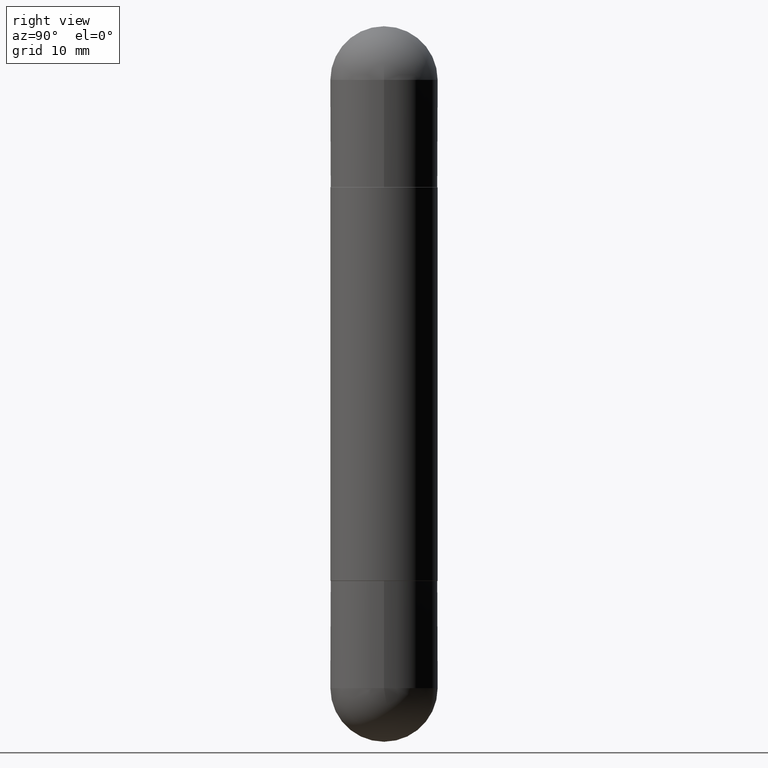
[diagram: clean part render]
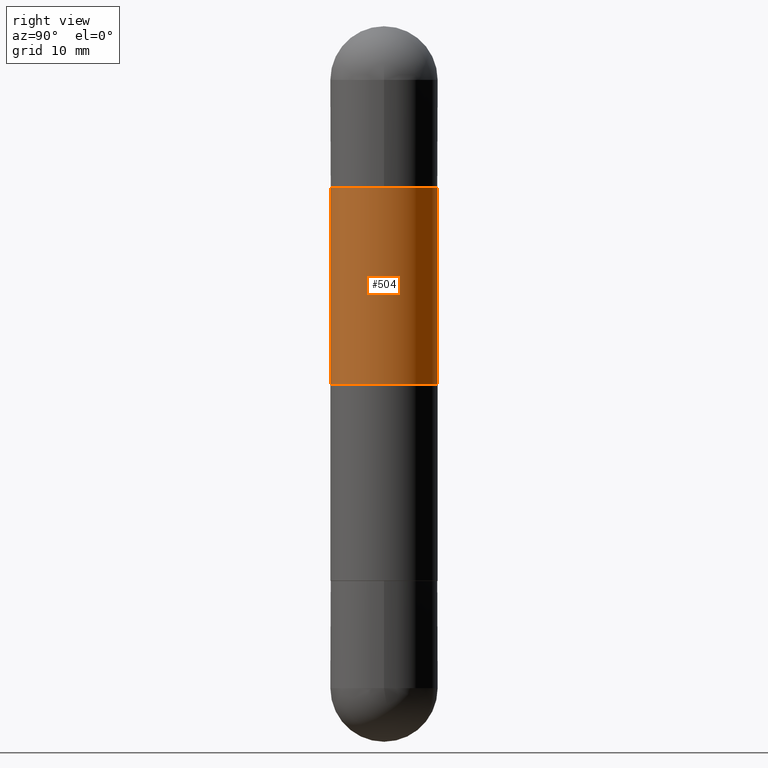
[diagram: same view with one face highlighted and labeled with its STEP entity id]
A machine part, right view. The second image highlights one B-rep face of the part: STEP entity #504.
In plain terms, the highlighted cylindrical surface (partial cylindrical patch) has radius 4.7625 mm, axis along (-0, 0, -1).
Its self-contained STEP definition (entity closure, byte-faithful):
#8 = DIRECTION ( 'NONE',  ( -2.444965825479166385E-29, 3.492201635841979178E-15, -1.000000000000000000 ) ) ;
#9 = LINE ( 'NONE', #766, #771 ) ;
#10 = DIRECTION ( 'NONE',  ( -2.444965825479166385E-29, 3.492201635841978784E-15, -1.000000000000000000 ) ) ;
#17 = DIRECTION ( 'NONE',  ( -0.000000000000000000, -0.000000000000000000, -1.000000000000000000 ) ) ;
#20 = CIRCLE ( 'NONE', #621, 0.1875000000000001110 ) ;
#48 = ORIENTED_EDGE ( 'NONE', *, *, #378, .F. ) ;
#61 = AXIS2_PLACEMENT_3D ( 'NONE', #320, #10, #74 ) ;
#74 = DIRECTION ( 'NONE',  ( -6.982962677686266711E-15, -1.000000000000000000, -2.913971193241879189E-15 ) ) ;
#103 = EDGE_CURVE ( 'NONE', #716, #119, #9, .T. ) ;
#119 = VERTEX_POINT ( 'NONE', #264 ) ;
#234 = CARTESIAN_POINT ( 'NONE',  ( 4.735898803953145257E-29, -6.764394568625911806E-15, -0.5630000000000008331 ) ) ;
#259 = CARTESIAN_POINT ( 'NONE',  ( 1.286343374582210880E-15, 0.1874999999999935052, -0.5630000000000001670 ) ) ;
#260 = EDGE_LOOP ( 'NONE', ( #616, #48, #507, #458 ) ) ;
#264 = CARTESIAN_POINT ( 'NONE',  ( -1.309305502066136946E-15, -0.1875000000000044964, -1.250000000000000222 ) ) ;
#320 = CARTESIAN_POINT ( 'NONE',  ( 0.000000000000000000, 0.000000000000000000, -2.500000000000000444 ) ) ;
#378 = EDGE_CURVE ( 'NONE', #716, #524, #565, .T. ) ;
#385 = CYLINDRICAL_SURFACE ( 'NONE', #61, 0.1875000000000001110 ) ;
#411 = CARTESIAN_POINT ( 'NONE',  ( -1.309305502066128860E-15, -0.1875000000000069389, -0.5630000000000014992 ) ) ;
#422 = DIRECTION ( 'NONE',  ( 2.444965825479166385E-29, -3.492201635841978784E-15, 1.000000000000000000 ) ) ;
#458 = ORIENTED_EDGE ( 'NONE', *, *, #477, .F. ) ;
#466 = DIRECTION ( 'NONE',  ( -1.000000000000000000, 0.000000000000000000, 0.000000000000000000 ) ) ;
#469 = EDGE_CURVE ( 'NONE', #524, #686, #763, .T. ) ;
#477 = EDGE_CURVE ( 'NONE', #686, #119, #20, .T. ) ;
#504 = ADVANCED_FACE ( 'NONE', ( #652 ), #385, .T. ) ;
#507 = ORIENTED_EDGE ( 'NONE', *, *, #103, .T. ) ;
#513 = CARTESIAN_POINT ( 'NONE',  ( 1.286343374582162760E-15, 0.1875000000000001110, -2.500000000000000000 ) ) ;
#524 = VERTEX_POINT ( 'NONE', #259 ) ;
#528 = CARTESIAN_POINT ( 'NONE',  ( 3.056207281848959032E-29, -4.365252044802474861E-15, -1.250000000000000222 ) ) ;
#565 = CIRCLE ( 'NONE', #772, 0.1875000000000002220 ) ;
#616 = ORIENTED_EDGE ( 'NONE', *, *, #469, .F. ) ;
#621 = AXIS2_PLACEMENT_3D ( 'NONE', #528, #17, #466 ) ;
#652 = FACE_OUTER_BOUND ( 'NONE', #260, .T. ) ;
#686 = VERTEX_POINT ( 'NONE', #776 ) ;
#716 = VERTEX_POINT ( 'NONE', #411 ) ;
#720 = DIRECTION ( 'NONE',  ( -2.444965825479166385E-29, 3.492201635841979178E-15, -1.000000000000000000 ) ) ;
#763 = LINE ( 'NONE', #513, #784 ) ;
#766 = CARTESIAN_POINT ( 'NONE',  ( -1.309305502066175797E-15, -0.1875000000000001110, -2.500000000000001332 ) ) ;
#771 = VECTOR ( 'NONE', #720, 39.37007874015748143 ) ;
#772 = AXIS2_PLACEMENT_3D ( 'NONE', #234, #422, #817 ) ;
#776 = CARTESIAN_POINT ( 'NONE',  ( 1.286343374582209894E-15, 0.1874999999999957534, -1.250000000000000222 ) ) ;
#784 = VECTOR ( 'NONE', #8, 39.37007874015748143 ) ;
#817 = DIRECTION ( 'NONE',  ( -6.982962677686265922E-15, -1.000000000000000000, -3.642463991552347014E-15 ) ) ;